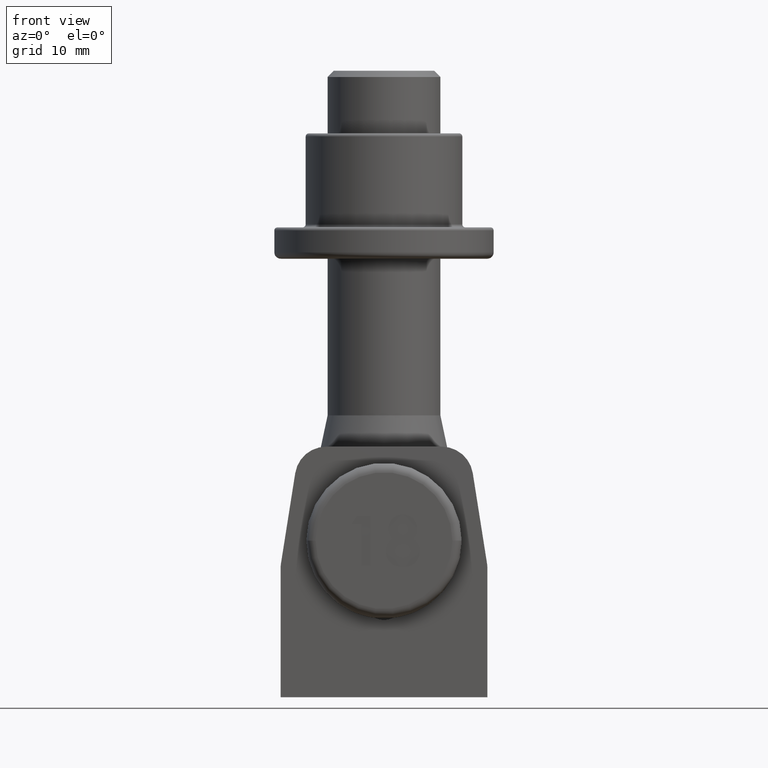
[diagram: clean part render]
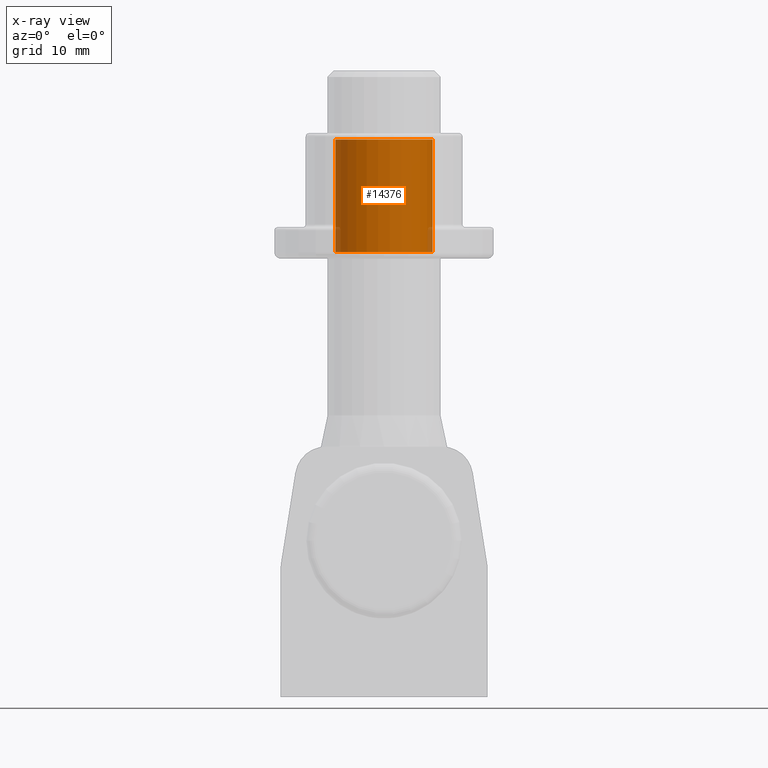
[diagram: x-ray — body ghosted, one internal face saturated and labeled with its STEP entity id]
A machine part, front view, then the same camera in x-ray: the body is ghosted and one INTERNAL B-rep face — a face not visible from any outside direction — is saturated and labeled: STEP entity #14376.
In plain terms, the highlighted cylindrical surface (partial cylindrical patch) has radius 7.75 mm, axis along (0, 0, 1).
Its self-contained STEP definition (entity closure, byte-faithful):
#244 = CARTESIAN_POINT ( 'NONE',  ( -7.749999999999989300, 9.491012693391974000E-016, 19.00000000000000400 ) ) ;
#475 = DIRECTION ( 'NONE',  ( -0.0000000000000000000, -0.0000000000000000000, 1.000000000000000000 ) ) ;
#498 = FACE_OUTER_BOUND ( 'NONE', #576, .T. ) ;
#576 = EDGE_LOOP ( 'NONE', ( #9140, #10633, #2462, #9521 ) ) ;
#1719 = VERTEX_POINT ( 'NONE', #5433 ) ;
#2462 = ORIENTED_EDGE ( 'NONE', *, *, #5731, .T. ) ;
#2641 = CIRCLE ( 'NONE', #7099, 7.749999999999989300 ) ;
#3195 = CARTESIAN_POINT ( 'NONE',  ( -7.749999999999989300, 9.491012693391974000E-016, 1.000000000000000900 ) ) ;
#4632 = CARTESIAN_POINT ( 'NONE',  ( 0.0000000000000000000, 0.0000000000000000000, 19.00000000000000400 ) ) ;
#5099 = VECTOR ( 'NONE', #475, 1000.000000000000000 ) ;
#5192 = EDGE_CURVE ( 'NONE', #14505, #11223, #14244, .T. ) ;
#5433 = CARTESIAN_POINT ( 'NONE',  ( 7.749999999999989300, 0.0000000000000000000, 19.00000000000000400 ) ) ;
#5731 = EDGE_CURVE ( 'NONE', #12679, #1719, #2641, .T. ) ;
#6863 = DIRECTION ( 'NONE',  ( 1.000000000000000000, 0.0000000000000000000, 0.0000000000000000000 ) ) ;
#7099 = AXIS2_PLACEMENT_3D ( 'NONE', #4632, #14514, #10914 ) ;
#8050 = DIRECTION ( 'NONE',  ( -0.0000000000000000000, -0.0000000000000000000, -1.000000000000000000 ) ) ;
#8174 = CARTESIAN_POINT ( 'NONE',  ( 0.0000000000000000000, 0.0000000000000000000, 20.00000000000000400 ) ) ;
#9140 = ORIENTED_EDGE ( 'NONE', *, *, #5192, .T. ) ;
#9521 = ORIENTED_EDGE ( 'NONE', *, *, #10666, .F. ) ;
#9672 = AXIS2_PLACEMENT_3D ( 'NONE', #15327, #8050, #6863 ) ;
#10320 = EDGE_CURVE ( 'NONE', #11223, #12679, #14156, .T. ) ;
#10557 = CARTESIAN_POINT ( 'NONE',  ( -7.749999999999989300, 9.491012693391974000E-016, 20.00000000000000400 ) ) ;
#10633 = ORIENTED_EDGE ( 'NONE', *, *, #10320, .T. ) ;
#10666 = EDGE_CURVE ( 'NONE', #14505, #1719, #14330, .T. ) ;
#10669 = DIRECTION ( 'NONE',  ( -0.0000000000000000000, -0.0000000000000000000, 1.000000000000000000 ) ) ;
#10888 = VECTOR ( 'NONE', #10669, 1000.000000000000000 ) ;
#10914 = DIRECTION ( 'NONE',  ( 1.000000000000000000, 0.0000000000000000000, 0.0000000000000000000 ) ) ;
#10918 = CARTESIAN_POINT ( 'NONE',  ( 7.749999999999989300, 0.0000000000000000000, 1.000000000000000900 ) ) ;
#11223 = VERTEX_POINT ( 'NONE', #3195 ) ;
#11681 = DIRECTION ( 'NONE',  ( -0.0000000000000000000, -0.0000000000000000000, 1.000000000000000000 ) ) ;
#12679 = VERTEX_POINT ( 'NONE', #244 ) ;
#12908 = DIRECTION ( 'NONE',  ( 1.000000000000000000, 0.0000000000000000000, 0.0000000000000000000 ) ) ;
#14124 = CARTESIAN_POINT ( 'NONE',  ( 7.749999999999989300, 0.0000000000000000000, 20.00000000000000400 ) ) ;
#14156 = LINE ( 'NONE', #10557, #10888 ) ;
#14244 = CIRCLE ( 'NONE', #9672, 7.749999999999989300 ) ;
#14330 = LINE ( 'NONE', #14124, #5099 ) ;
#14376 = ADVANCED_FACE ( 'NONE', ( #498 ), #14574, .F. ) ;
#14505 = VERTEX_POINT ( 'NONE', #10918 ) ;
#14514 = DIRECTION ( 'NONE',  ( 0.0000000000000000000, 0.0000000000000000000, 1.000000000000000000 ) ) ;
#14574 = CYLINDRICAL_SURFACE ( 'NONE', #16012, 7.749999999999989300 ) ;
#15327 = CARTESIAN_POINT ( 'NONE',  ( 0.0000000000000000000, 0.0000000000000000000, 1.000000000000000900 ) ) ;
#16012 = AXIS2_PLACEMENT_3D ( 'NONE', #8174, #11681, #12908 ) ;